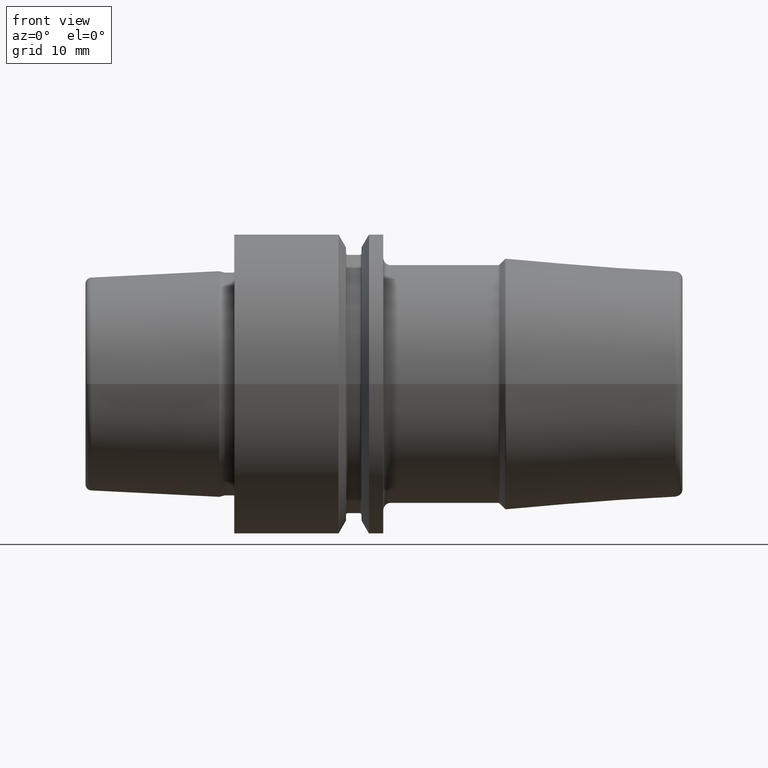
[diagram: clean part render]
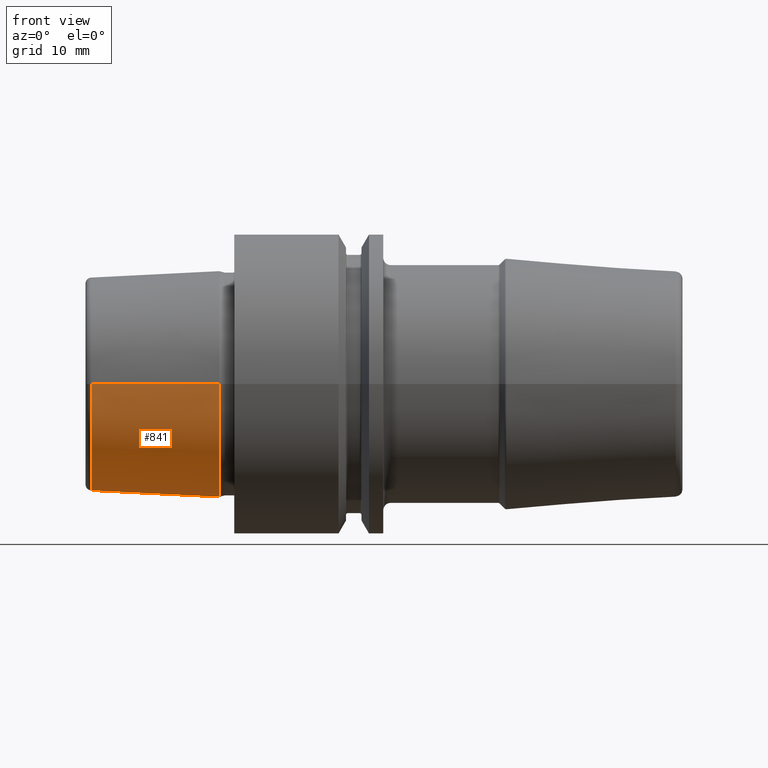
[diagram: same view with one face highlighted and labeled with its STEP entity id]
A machine part, front view. The second image highlights one B-rep face of the part: STEP entity #841.
In plain terms, the highlighted conical surface has half-angle 2.868 deg.
Its self-contained STEP definition (entity closure, byte-faithful):
#25=CARTESIAN_POINT('',(-2.E0,0.E0,0.E0));
#26=DIRECTION('',(1.E0,0.E0,0.E0));
#27=DIRECTION('',(0.E0,-1.E0,0.E0));
#28=AXIS2_PLACEMENT_3D('',#25,#26,#27);
#30=DIRECTION('',(-9.987473526255E-1,-5.003724236654E-2,0.E0));
#31=VECTOR('',#30,1.716152713580E1);
#32=CARTESIAN_POINT('',(-2.E0,1.51037E1,0.E0));
#33=LINE('',#32,#31);
#34=DIRECTION('',(-9.987473526255E-1,5.003724236654E-2,0.E0));
#35=VECTOR('',#34,1.716152713580E1);
#36=CARTESIAN_POINT('',(-2.E0,-1.51037E1,0.E0));
#37=LINE('',#36,#35);
#48=CARTESIAN_POINT('',(-1.914002979389E1,0.E0,0.E0));
#49=DIRECTION('',(-1.E0,0.E0,0.E0));
#50=DIRECTION('',(0.E0,1.E0,0.E0));
#51=AXIS2_PLACEMENT_3D('',#48,#49,#50);
#652=CARTESIAN_POINT('',(-2.E0,1.51037E1,0.E0));
#653=CARTESIAN_POINT('',(-2.E0,-1.51037E1,0.E0));
#654=VERTEX_POINT('',#652);
#655=VERTEX_POINT('',#653);
#656=CARTESIAN_POINT('',(-1.914002979389E1,1.424498450733E1,0.E0));
#657=VERTEX_POINT('',#656);
#658=CARTESIAN_POINT('',(-1.914002979389E1,-1.424498450733E1,0.E0));
#659=VERTEX_POINT('',#658);
#829=CARTESIAN_POINT('',(-1.057001489695E1,0.E0,0.E0));
#830=DIRECTION('',(1.E0,0.E0,0.E0));
#831=DIRECTION('',(0.E0,-1.E0,0.E0));
#832=AXIS2_PLACEMENT_3D('',#829,#830,#831);
#833=CONICAL_SURFACE('',#832,1.467434225366E1,2.868120487315E0);
#834=ORIENTED_EDGE('',*,*,#820,.T.);
#835=ORIENTED_EDGE('',*,*,#795,.T.);
#837=ORIENTED_EDGE('',*,*,#836,.T.);
#838=ORIENTED_EDGE('',*,*,#791,.F.);
#839=EDGE_LOOP('',(#834,#835,#837,#838));
#840=FACE_OUTER_BOUND('',#839,.F.);
#841=ADVANCED_FACE('',(#840),#833,.T.);
#29=CIRCLE('',#28,1.51037E1);
#52=CIRCLE('',#51,1.424498450733E1);
#791=EDGE_CURVE('',#655,#659,#37,.T.);
#795=EDGE_CURVE('',#654,#657,#33,.T.);
#820=EDGE_CURVE('',#655,#654,#29,.T.);
#836=EDGE_CURVE('',#657,#659,#52,.T.);